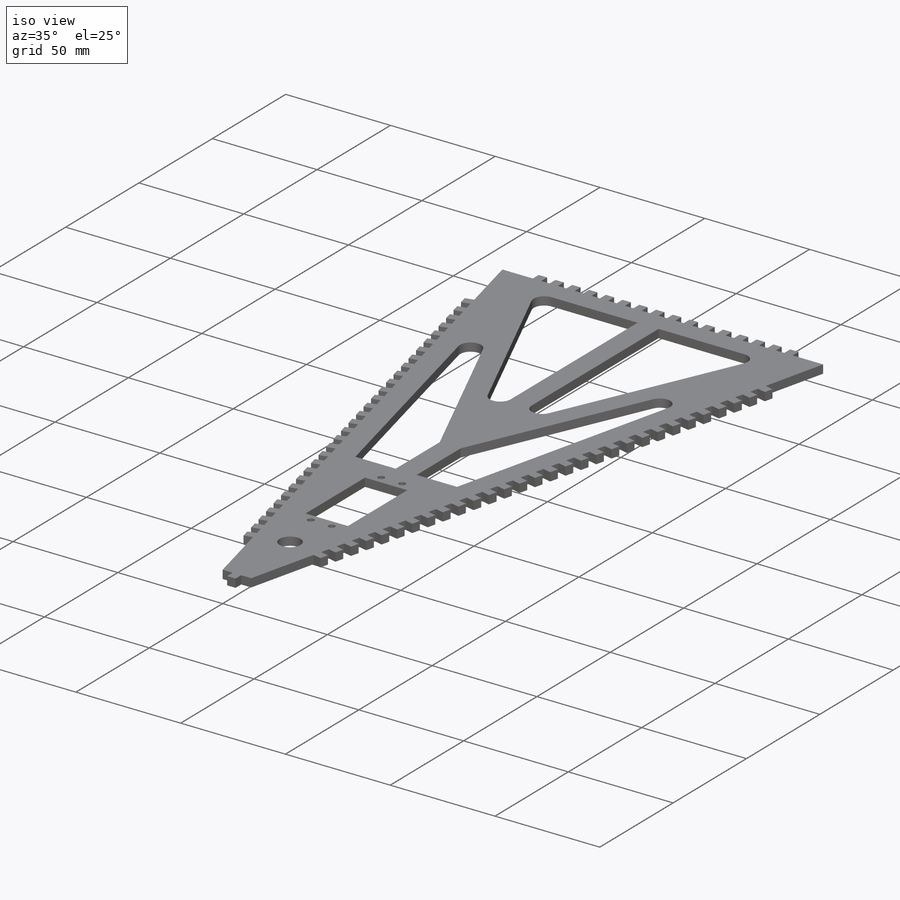
[diagram: iso view]
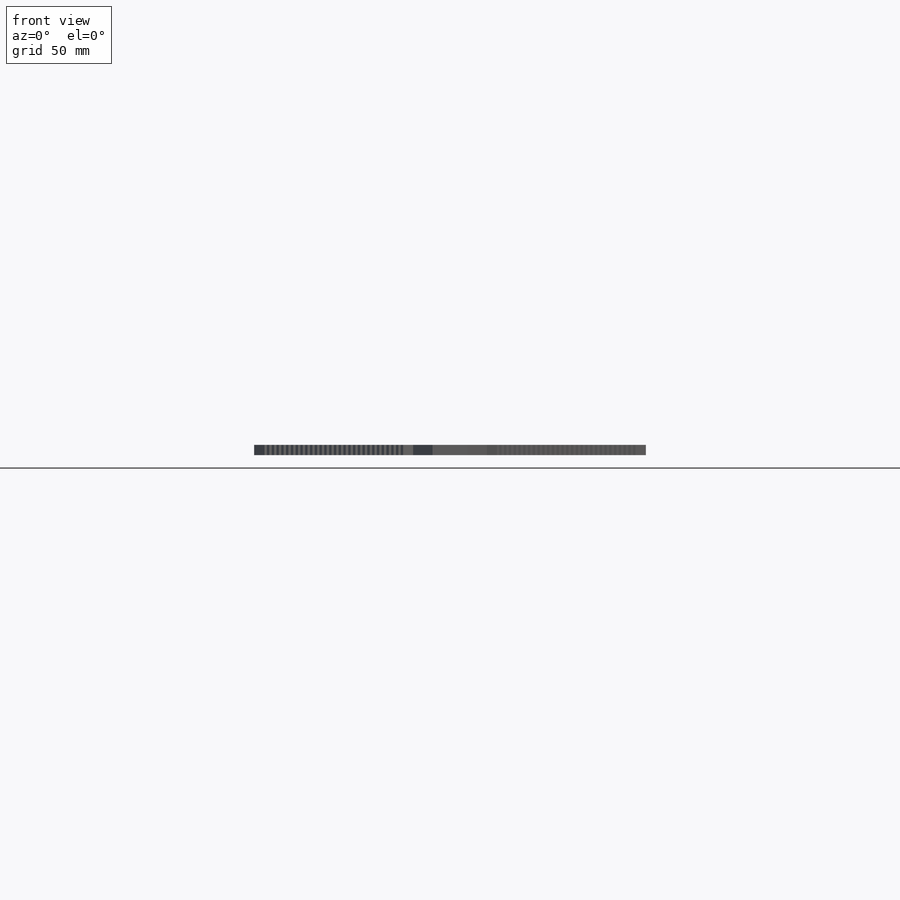
[diagram: front view]
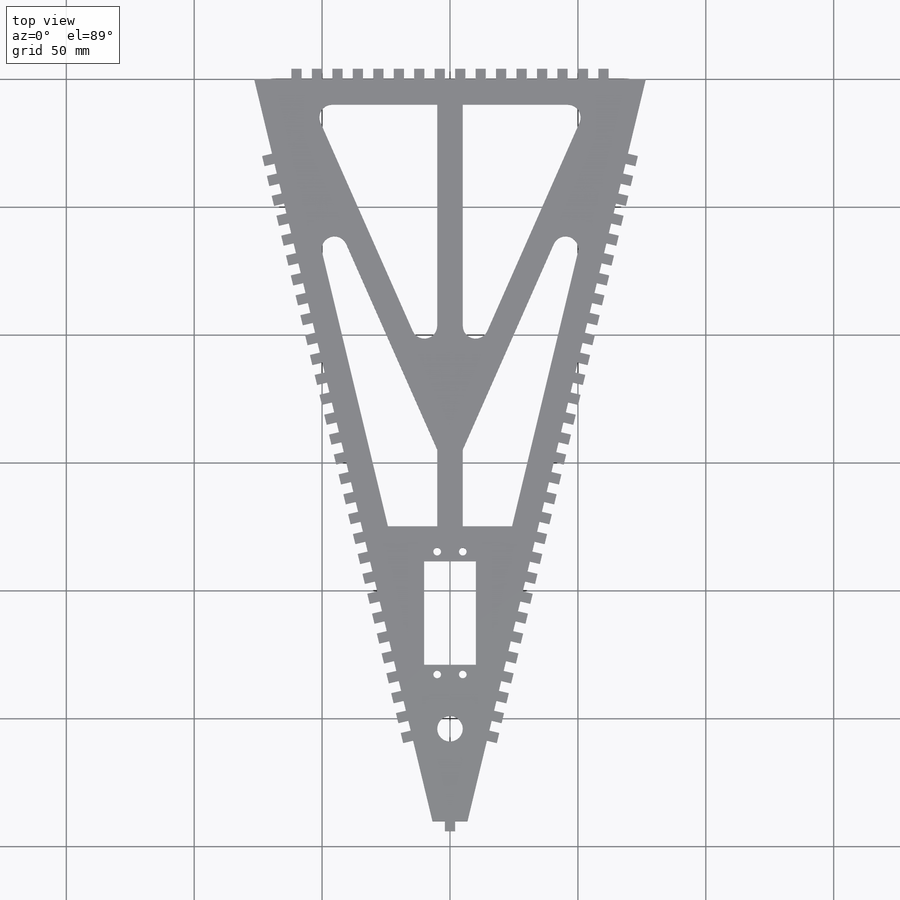
[diagram: top view]
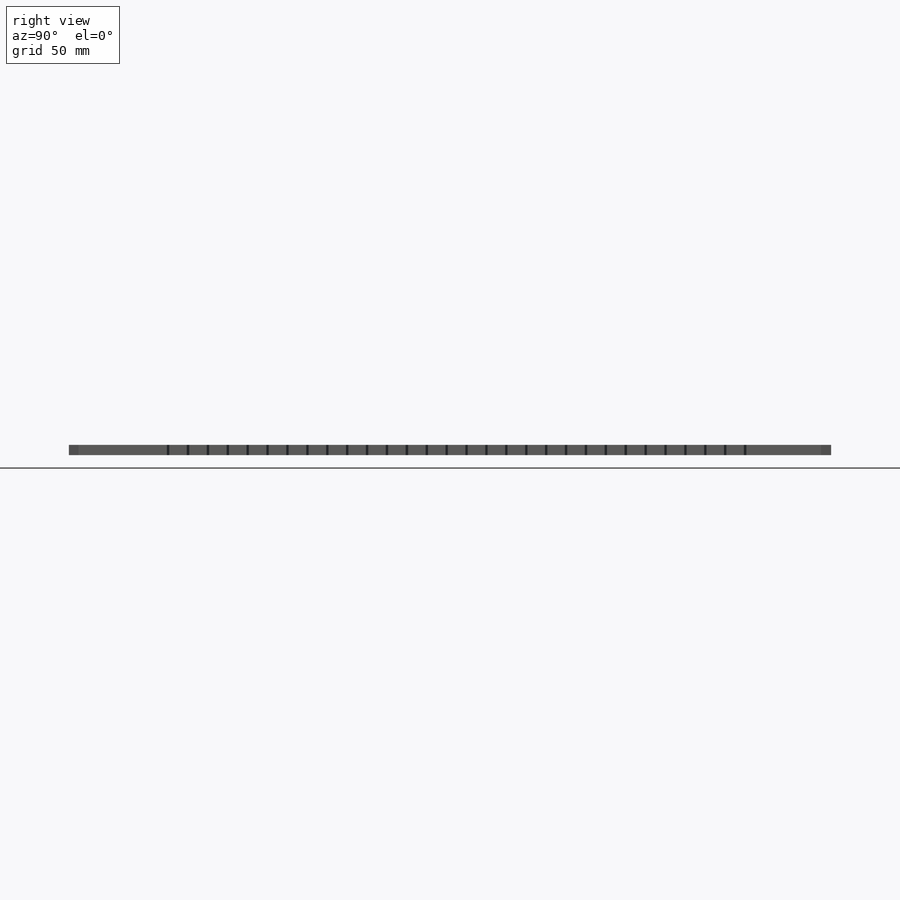
[diagram: right view]
SOLIDWORKS PART (.sldprt)
format: sldprt  version: not decoded by parser v0  size: 798,208 bytes
history: native  units: mm
features: sketch x6, extrude x3, cut_extrude x3, material x1 (+13 scaffold rows collapsed)
feature tree (26):
  scaffold x13  (default folders/planes/origin — collapsed)
  material  "Cedar"
  sketch  "Sketch1"  dims[D1=153.12mm D2=13.66mm D3=298.49mm]
  extrude  "Boss-Extrude1"  Depth=4mm
  sketch  "Sketch2"  dims[D1=4.0mm D2=4.0mm D3=30.0mm D4=30.0]
  extrude  "Boss-Extrude2"  Depth=4mm
  sketch  "Sketch3"  dims[D1=2.0mm D2=4.0mm D3=4.0mm D5=4.0mm D6=4.0mm D4=8.0]
  extrude  "Boss-Extrude3"  Depth=4mm
  sketch  "Sketch4"  dims[c1.D5=5.0mm c1.D1=10.0mm c1.D2=10.0mm c1.D3=10.0mm c1.D4=5.0mm c2.D5=30.0mm c2.D6=40.0mm]
  cut_extrude  "Cut-Extrude1"  Depth=4mm
  sketch  "Sketch5"  dims[D1=10.0mm D2=40.0mm]
  cut_extrude  "Cut-Extrude2"  Depth=10mm
  sketch  "Sketch6"  dims[c1.D5=3.0mm c1.D1=40.5mm c1.D2=20.2mm c1.D3=25.0mm c1.D4=24.0mm c2.D5=3.0mm c2.D6=10.0mm]
  cut_extrude  "Cut-Extrude3"  Depth=4mm
decode coverage: 12 of 12 modeling features carry decoded parameters
note: suppression state not decoded; provenance and decode notes live in map.json
